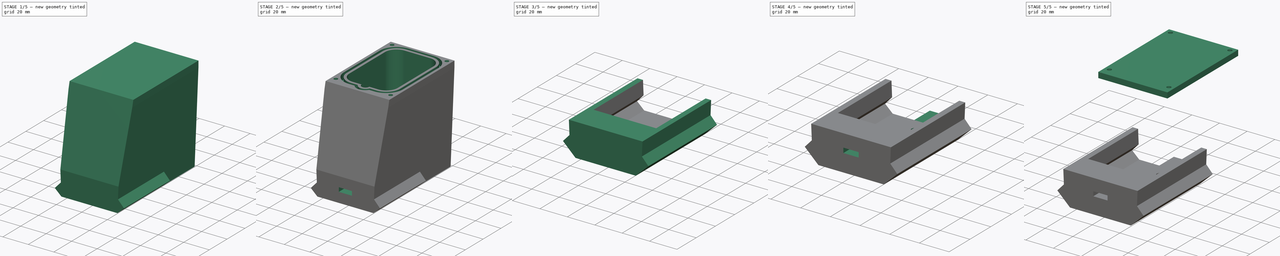
[diagram: build sequence overview — one tinted view per stage of 5, left to right]
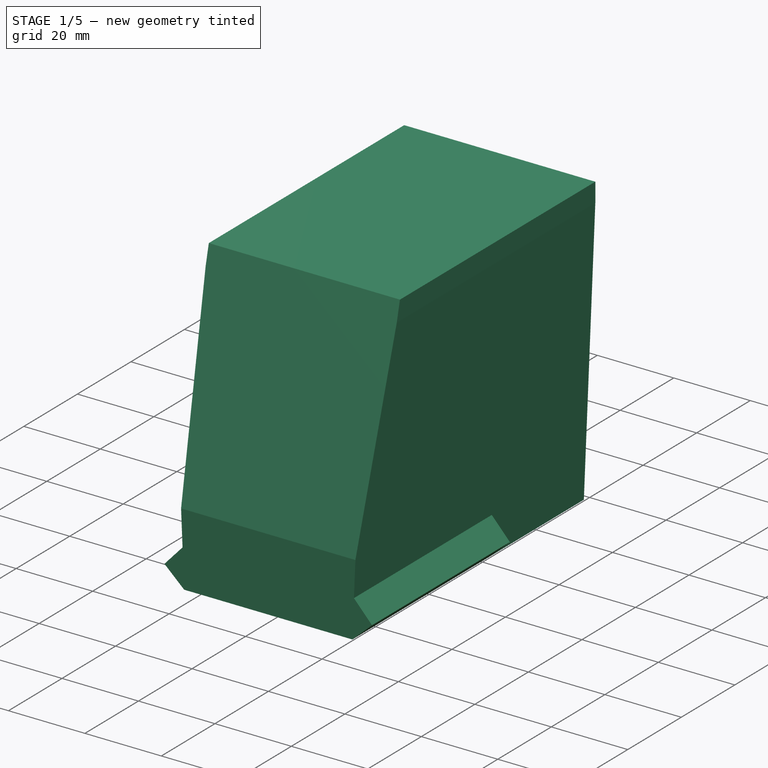
[diagram: stage 1 of 5 — iso view after this stage's code; geometry added in this stage tinted green]
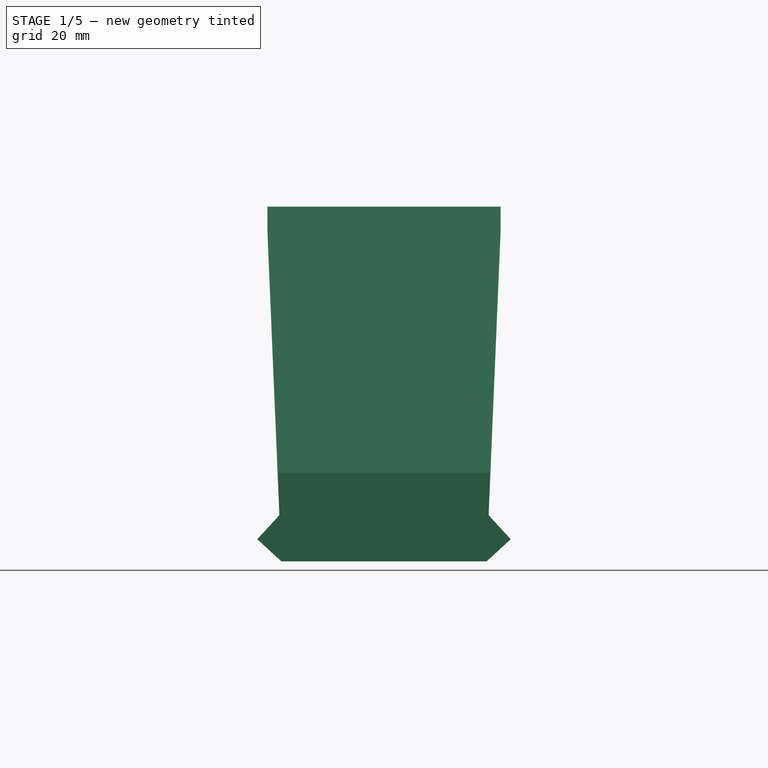
[diagram: stage 1 of 5 — front view after this stage's code; geometry added in this stage tinted green]
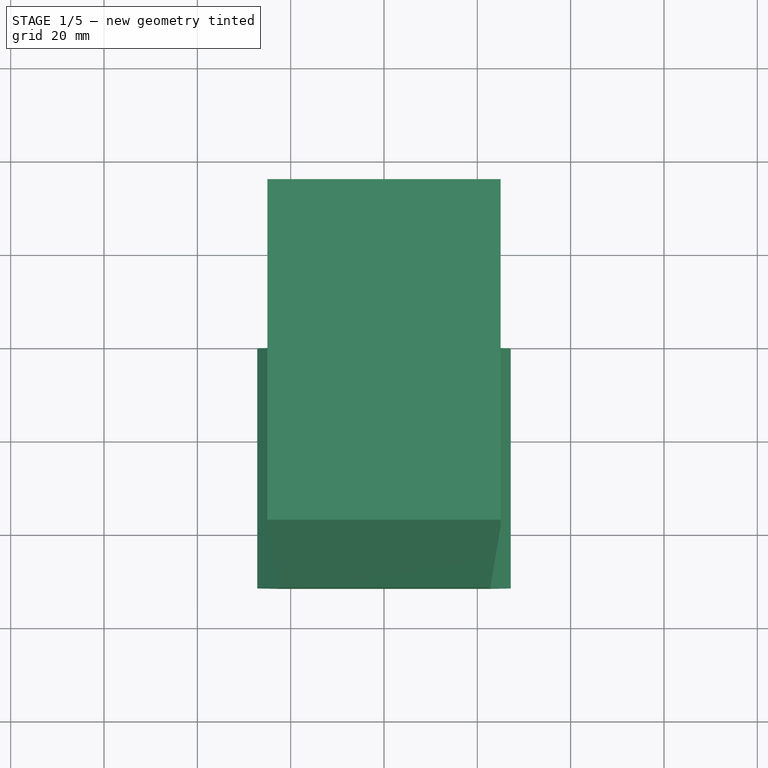
[diagram: stage 1 of 5 — top view after this stage's code; geometry added in this stage tinted green]
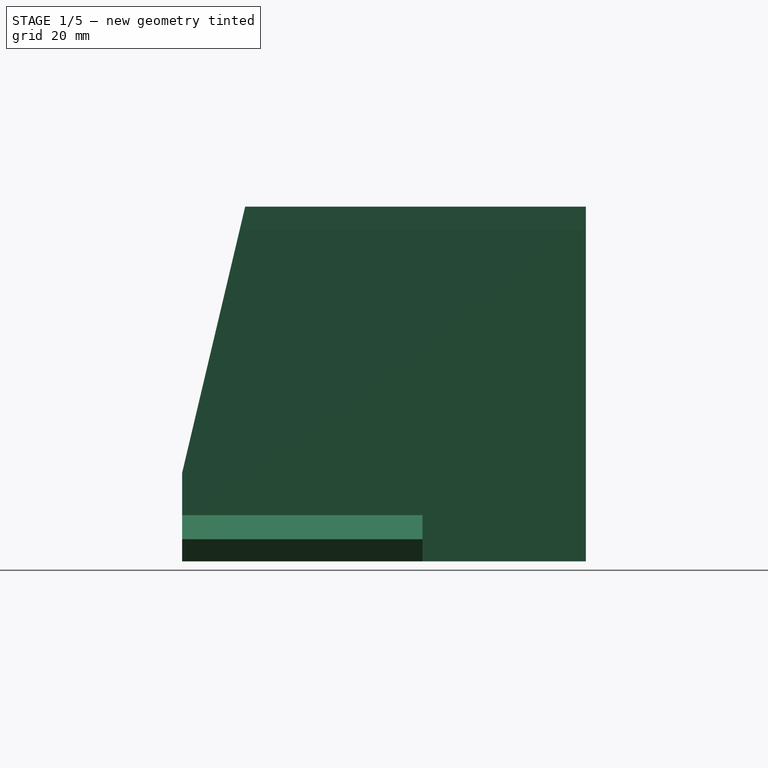
[diagram: stage 1 of 5 — right view after this stage's code; geometry added in this stage tinted green]
FCSTD DOCUMENT  (FreeCAD 1.0RUnknown)
Label: bike_battery_pack
License: Creative Commons Attribution-NonCommercial 4.0
LicenseURL: https://creativecommons.org/licenses/by-nc/4.0/
objects: Sketcher::SketchObject×15, PartDesign::Pocket×10, PartDesign::SubShapeBinder×6, PartDesign::Pad×5, PartDesign::Body×3, PartDesign::SubtractivePipe×1, App::VarSet×1, PartDesign::AdditivePipe×1
note: 90 computed .brp shape members not serialized (recipe doc carries the construction recipe); baked Part::Feature solids carry a one-line shape summary decoded from their .brp

FEATURE [Sketcher::SketchObject] Sketch
  ArcFitTolerance = 1e-06
  AttachmentSupport = -> [XZ_Plane]
  FullyConstrained = true
  MakeInternals = false
  MapMode = 5
  Placement = pos=(0,0,0) rot=(1,0,0;1.5708rad)
  expr: Constraints[12] = VarSet.cells_x * VarSet.cell_d + VarSet.tol + 2 * (VarSet.thk + VarSet.groove_thk)
  expr: Constraints[13] = VarSet.cell_h + VarSet.thk + VarSet.tol
  expr: Constraints[14] = VarSet.cells_x * VarSet.cell_d + 2 * VarSet.thk
  sketch-geometry (6):
    g0: LineSegment StartX=-25 StartY=0 StartZ=0 EndX=-25 EndY=5 EndZ=0
    g1: LineSegment StartX=-25 StartY=5 StartZ=0 EndX=25 EndY=5 EndZ=0
    g2: LineSegment StartX=25 StartY=5 StartZ=0 EndX=25 EndY=0 EndZ=0
    g3: LineSegment StartX=25 StartY=0 StartZ=0 EndX=22 EndY=-71 EndZ=0
    g4: LineSegment StartX=22 StartY=-71 StartZ=0 EndX=-22 EndY=-71 EndZ=0
    g5: LineSegment StartX=-22 StartY=-71 StartZ=0 EndX=-25 EndY=0 EndZ=0
  constraints (16):
    c: PointOnObject(g0,g-1)
    c: Vertical(g0)
    c: Coincident(g0,g1)
    c: Horizontal(g1)
    c: Coincident(g1,g2)
    c: Vertical(g2)
    c: Coincident(g2,g3)
    c: Coincident(g3,g4)
    c: Coincident(g4,g5)
    c: Coincident(g5,g0)
    c: Symmetric(g0,g2,g-2)
    c: DistanceY(g2,g2) = 5  'hh'
    c: DistanceX(g1,g1) = 50
    c: DistanceY(g3,g3) = 71
    c: DistanceX(g4,g4) = 44
    c: Symmetric(g4,g3,g-2)
FEATURE [PartDesign::Pad] Pad
  Direction = (0,-1,2e-16)
  Length = 51.5
  Length2 = 35
  Placement = pos=(0,0,0) rot=(1,0,0;1.5708rad)
  Profile = -> Sketch
  ReferenceAxis = -> Sketch [N_Axis]
  Refine = true
  Suppressed = false
  Type = 4
  expr: Length = VarSet.cells_y * VarSet.cell_d / 2 + VarSet.plug_length + VarSet.tol + VarSet.thk + VarSet.groove_thk + VarSet.cable_groove
  expr: Length2 = VarSet.cells_y * VarSet.cell_d / 2 + VarSet.tol + VarSet.thk + VarSet.groove_thk
FEATURE [Sketcher::SketchObject] Sketch001
  ArcFitTolerance = 1e-06
  AttachmentSupport = -> [XZ_Plane]
  ExternalGeometry = -> [Sketch]
  FullyConstrained = true
  MakeInternals = false
  MapMode = 5
  Placement = pos=(0,0,0) rot=(1,0,0;1.5708rad)
  expr: Constraints[14] = VarSet.tab_length
  sketch-geometry (6):
    g0: LineSegment StartX=22 StartY=-71 StartZ=0 EndX=27.1543 EndY=-66.2636 EndZ=0
    g1: LineSegment StartX=27.1543 StartY=-66.2636 StartZ=0 EndX=22.4179 EndY=-61.1093 EndZ=0
    g2: LineSegment StartX=22.4179 StartY=-61.1093 StartZ=0 EndX=22 EndY=-71 EndZ=0
    g3: LineSegment StartX=-22 StartY=-71 StartZ=0 EndX=-27.1543 EndY=-66.2636 EndZ=0
    g4: LineSegment StartX=-27.1543 StartY=-66.2636 StartZ=0 EndX=-22.4179 EndY=-61.1093 EndZ=0
    g5: LineSegment StartX=-22.4179 StartY=-61.1093 StartZ=0 EndX=-22 EndY=-71 EndZ=0
  constraints (16):
    c: Coincident(g-3,g0)
    c: Coincident(g0,g1)
    c: PointOnObject(g1,g-3)
    c: Coincident(g1,g2)
    c: Coincident(g2,g0)
    c: Coincident(g-4,g3)
    c: Coincident(g3,g4)
    c: PointOnObject(g4,g-4)
    c: Coincident(g4,g5)
    c: Coincident(g5,g3)
    c: Equal(g3,g0)
    c: Equal(g1,g0)
    c: Equal(g4,g3)
    c: Equal(g5,g2)
    c: Distance(g1,g1) = 7
    c: Perpendicular(g0,g1)
FEATURE [PartDesign::Pad] Pad001
  BaseFeature = -> Pad
  Direction = (0,-1,2e-16)
  Length = 17
  Length2 = 10
  Placement = pos=(0,0,0) rot=(1,0,0;1.5708rad)
  Profile = -> Sketch001
  ReferenceAxis = -> Sketch001 [N_Axis]
  Refine = true
  Suppressed = false
  Type = 1
FEATURE [Sketcher::SketchObject] Sketch002
  ArcFitTolerance = 1e-06
  AttachmentSupport = -> [YZ_Plane]
  ExternalGeometry = -> [Sketch]
  FullyConstrained = true
  MakeInternals = false
  MapMode = 5
  Placement = pos=(0,0,0) rot=(0.57735,0.57735,0.57735;2.0944rad)
  expr: Constraints[6] = Pad.Length
  expr: Constraints[7] = VarSet.plug_length
  expr: Constraints[8] = VarSet.base_height
  sketch-geometry (3):
    g0: LineSegment StartX=-38 StartY=5 StartZ=0 EndX=-51.5 EndY=5 EndZ=0
    g1: LineSegment StartX=-51.5 StartY=5 StartZ=0 EndX=-51.5 EndY=-52 EndZ=0
    g2: LineSegment StartX=-51.5 StartY=-52 StartZ=0 EndX=-38 EndY=5 EndZ=0
  constraints (9):
    c: Horizontal(g0)
    c: Coincident(g0,g1)
    c: Vertical(g1)
    c: Coincident(g1,g2)
    c: Coincident(g2,g0)
    c: Horizontal(g0,g-4)
    c: DistanceX(g0,g-1) = 51.5
    c: DistanceX(g0,g0) = 13.5
    c: DistanceY(g-3,g1) = 19
FEATURE [PartDesign::Pocket] Pocket
  BaseFeature = -> Pad001
  Direction = (-1,0,0)
  Length = 5
  Length2 = 5
  Midplane = true
  Placement = pos=(0,0,0) rot=(1,0,0;1.5708rad)
  Profile = -> Sketch002
  ReferenceAxis = -> Sketch002 [N_Axis]
  Refine = true
  Suppressed = false
  Type = 1
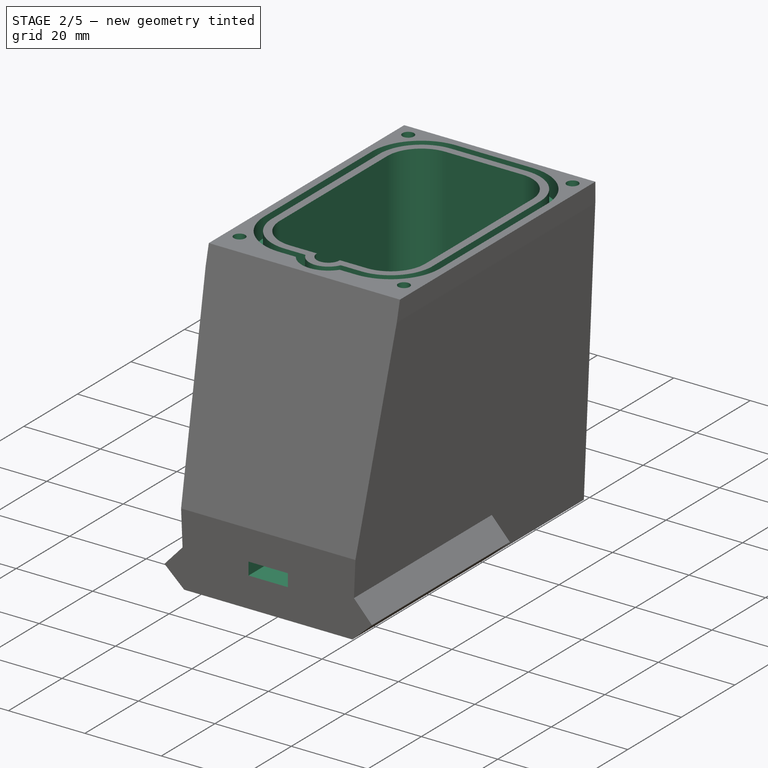
[diagram: stage 2 of 5 — iso view after this stage's code; geometry added in this stage tinted green]
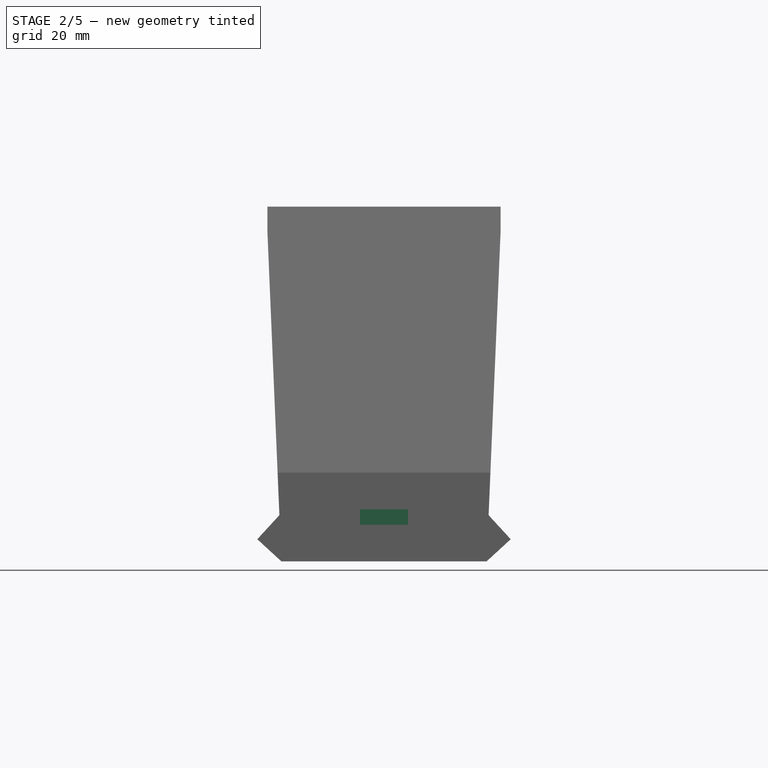
[diagram: stage 2 of 5 — front view after this stage's code; geometry added in this stage tinted green]
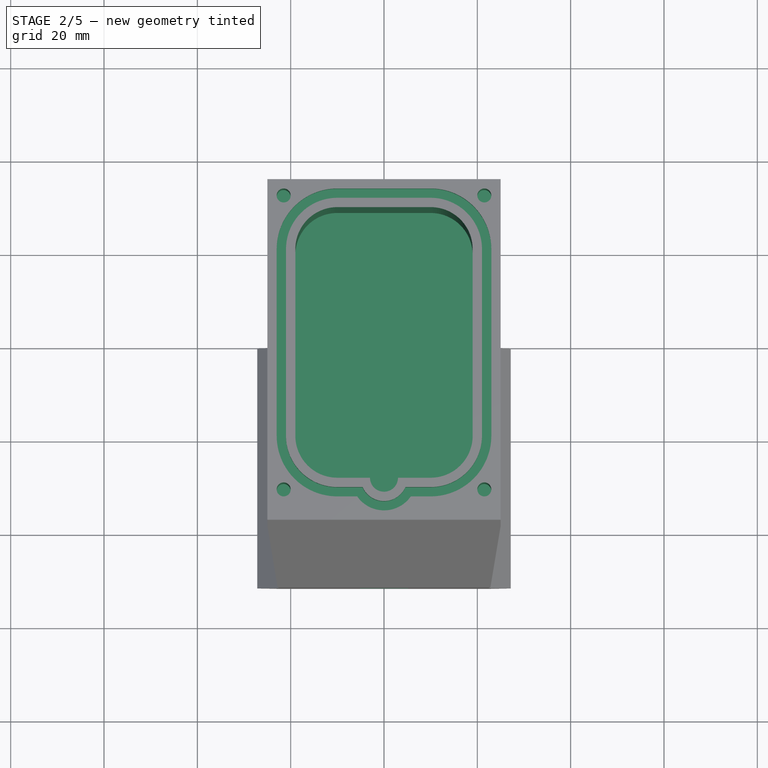
[diagram: stage 2 of 5 — top view after this stage's code; geometry added in this stage tinted green]
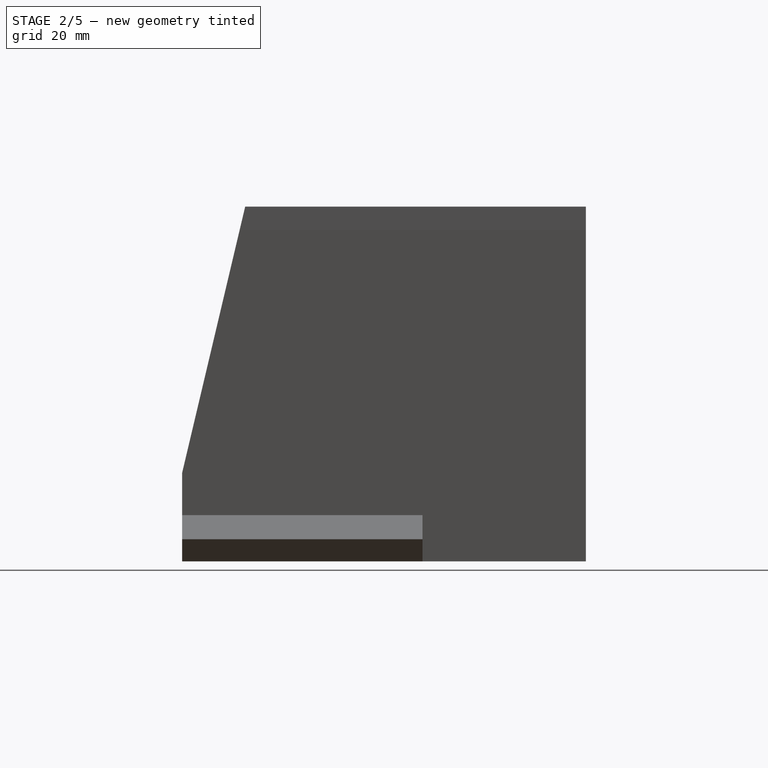
[diagram: stage 2 of 5 — right view after this stage's code; geometry added in this stage tinted green]
FEATURE [Sketcher::SketchObject] Sketch003
  ArcFitTolerance = 1e-06
  AttachmentSupport = -> [XY_Plane]
  FullyConstrained = false
  MakeInternals = false
  MapMode = 5
  expr: Constraints[11] = VarSet.cells_x * VarSet.cell_d + VarSet.tol + VarSet.cable_groove * 0
  expr: Constraints[12] = VarSet.cells_y * VarSet.cell_d + VarSet.tol * 2
  expr: Constraints[13] = VarSet.cell_d / 2
  expr: Constraints[22] = VarSet.cable_groove
  sketch-geometry (12):
    g0: LineSegment StartX=19 StartY=-20 StartZ=0 EndX=19 EndY=20 EndZ=0
    g1: LineSegment StartX=10 StartY=29 StartZ=0 EndX=-10 EndY=29 EndZ=0
    g2: LineSegment StartX=-19 StartY=20 StartZ=0 EndX=-19 EndY=-20 EndZ=0
    g3: ArcOfCircle CenterX=-10 CenterY=-20 CenterZ=0 NormalX=0 NormalY=0 NormalZ=1 AngleXU=0 Radius=9 StartAngle=3.14159 EndAngle=4.71239
    g4: ArcOfCircle CenterX=10 CenterY=-20 CenterZ=0 NormalX=0 NormalY=0 NormalZ=1 AngleXU=0 Radius=9 StartAngle=4.71239 EndAngle=6.28319
    g5: ArcOfCircle CenterX=10 CenterY=20 CenterZ=0 NormalX=0 NormalY=0 NormalZ=1 AngleXU=0 Radius=9 StartAngle=0 EndAngle=1.5708
    g6: ArcOfCircle CenterX=-10 CenterY=20 CenterZ=0 NormalX=0 NormalY=0 NormalZ=1 AngleXU=0 Radius=9 StartAngle=1.5708 EndAngle=3.14159
    g7: GeomPoint [constr] X=19 Y=29 Z=0
    g8: GeomPoint [constr] X=0 Y=0 Z=0
    g9: LineSegment StartX=-10 StartY=-29 StartZ=0 EndX=-3 EndY=-29 EndZ=0
    g10: LineSegment StartX=10 StartY=-29 StartZ=0 EndX=3 EndY=-29 EndZ=0
    g11: ArcOfCircle CenterX=0 CenterY=-29 CenterZ=0 NormalX=0 NormalY=0 NormalZ=1 AngleXU=0 Radius=3 StartAngle=3.14159 EndAngle=6.28319
  constraints (27):
    c: Tangent(g0,g4) = -1.5708
    c: Tangent(g0,g5) = -1.5708
    c: Tangent(g1,g5) = -1.5708
    c: Tangent(g1,g6) = -1.5708
    c: Tangent(g2,g6) = -1.5708
    c: Tangent(g2,g3) = -1.5708
    c: Horizontal(g1)
    c: Vertical(g0)
    c: Equal(g3,g4)
    c: PointOnObject(g7,g0)
    c: PointOnObject(g7,g1)
    c: Distance(g0,g2) = 38
    c: Distance(g3,g1) = 58
    c: Radius(g4) = 9
    c: Symmetric(g2,g0,g-2)
    c: Vertical(g1,g3)
    c: Symmetric(g3,g4,g-2)
    c: Tangent(g3,g9) = -1.5708
    c: Tangent(g4,g10) = 1.5708
    c: PointOnObject(g11,g-2)
    c: Coincident(g11,g9)
    c: Coincident(g11,g10)
    c: Radius(g11) = 3
    c: Horizontal(g11,g3)
    c: Distance(g6,g-2) = 10
    c: Horizontal(g9)
    c: Symmetric(g2,g2,g-1)
FEATURE [PartDesign::Pocket] Pocket001
  BaseFeature = -> Pocket
  Direction = (0,0,-1)
  Length = 67
  Length2 = 5
  Placement = pos=(0,0,0) rot=(1,0,0;1.5708rad)
  Profile = -> Sketch003
  ReferenceAxis = -> Sketch003 [N_Axis]
  Refine = true
  Suppressed = false
  Type = 4
  expr: Length = VarSet.cell_h + VarSet.tol
  expr: Length2 = Sketch.Constraints.hh
FEATURE [Sketcher::SketchObject] Sketch004
  ArcFitTolerance = 1e-06
  AttachmentSupport = -> [Sketch003]
  ExternalGeometry = -> [Sketch]
  FullyConstrained = true
  MakeInternals = false
  MapMode = 45
  Placement = pos=(-19,-9e-16,0) rot=(0,0.707107,0.707107;3.14159rad)
  expr: Constraints[10] = VarSet.groove_thk
  expr: Constraints[11] = VarSet.thk / 2
  sketch-geometry (4):
    g0: LineSegment StartX=4 StartY=0 StartZ=0 EndX=4 EndY=5 EndZ=0
    g1: LineSegment StartX=4 StartY=5 StartZ=0 EndX=2 EndY=5 EndZ=0
    g2: LineSegment StartX=2 StartY=5 StartZ=0 EndX=2 EndY=0 EndZ=0
    g3: LineSegment StartX=2 StartY=0 StartZ=0 EndX=4 EndY=0 EndZ=0
  constraints (12):
    c: Coincident(g0,g1)
    c: Coincident(g1,g2)
    c: Coincident(g2,g3)
    c: Coincident(g3,g0)
    c: Vertical(g0)
    c: Vertical(g2)
    c: Horizontal(g1)
    c: Horizontal(g3)
    c: PointOnObject(g0,g-1)
    c: PointOnObject(g0,g-3)
    c: DistanceX(g3,g3) = 2
    c: Distance(g1,g-2) = 2
FEATURE [PartDesign::SubtractivePipe] SubtractivePipe
  AuxilleryCurvelinear = true
  AuxillerySpineTangent = false
  BaseFeature = -> Pocket001
  Binormal = (0,0,0)
  Mode = 0
  Placement = pos=(0,0,0) rot=(1,0,0;1.5708rad)
  Profile = -> Sketch004
  Refine = true
  Spine = -> Sketch003
  SpineTangent = false
  Suppressed = false
  Transformation = 0
  Transition = 2
FEATURE [App::VarSet] VarSet
  base_height = 19
  cable_groove = 3
  cell_d = 18
  cell_h = 65
  cells_x = 2
  cells_y = 3
  groove_thk = 2
  hole_dia = 3
  plug_body_length = 10.4
  plug_height = 12.3
  plug_length = 13.5
  plug_radius = 1
  plug_slanted_length = 1.5
  plug_width = 5.3
  tab_length = 7
  thk = 4
  tol = 2
  expr: plug_body_length = (12.4 - 3 + 1) * 1 mm
FEATURE [Sketcher::SketchObject] Sketch005
  ArcFitTolerance = 1e-06
  AttachmentSupport = -> [XY_Plane]
  ExternalGeometry = -> [SubtractivePipe]
  FullyConstrained = true
  MakeInternals = false
  MapMode = 5
  expr: Constraints[3] = VarSet.hole_dia
  expr: Constraints[7] = 2 mm + VarSet.hole_dia / 2
  expr: Constraints[8] = 2 mm + VarSet.hole_dia / 2
  sketch-geometry (4):
    g0: Circle CenterX=-21.5 CenterY=31.5 CenterZ=0 NormalX=0 NormalY=0 NormalZ=1 AngleXU=0 Radius=1.5
    g1: Circle CenterX=21.5 CenterY=31.5 CenterZ=0 NormalX=0 NormalY=0 NormalZ=1 AngleXU=0 Radius=1.5
    g2: Circle CenterX=21.5 CenterY=-31.5 CenterZ=0 NormalX=0 NormalY=0 NormalZ=1 AngleXU=0 Radius=1.5
    g3: Circle CenterX=-21.5 CenterY=-31.5 CenterZ=0 NormalX=0 NormalY=0 NormalZ=1 AngleXU=0 Radius=1.5
  constraints (9):
    c: Equal(g0,g1)
    c: Equal(g1,g2)
    c: Equal(g2,g3)
    c: Diameter(g0) = 3
    c: Symmetric(g0,g1,g-2)
    c: Symmetric(g0,g3,g-1)
    c: Symmetric(g2,g3,g-2)
    c: Distance(g0,g-4) = 3.5
    c: Distance(g0,g-3) = 3.5
FEATURE [PartDesign::Pocket] Pocket002
  BaseFeature = -> SubtractivePipe
  Direction = (0,0,-1)
  Length = 5
  Length2 = 15
  Placement = pos=(0,0,0) rot=(1,0,0;1.5708rad)
  Profile = -> Sketch005
  ReferenceAxis = -> Sketch005 [N_Axis]
  Refine = true
  Reversed = true
  Suppressed = false
  Type = 4
FEATURE [Sketcher::SketchObject] Sketch006
  ArcFitTolerance = 1e-06
  AttachmentSupport = -> [XZ_Plane]
  ExternalGeometry = -> [Sketch]
  FullyConstrained = true
  MakeInternals = false
  MapMode = 5
  Placement = pos=(0,0,0) rot=(1,0,0;1.5708rad)
  expr: Constraints[11] = VarSet.base_height / 2
  expr: Constraints[7] = VarSet.plug_width - 2 mm
  expr: Constraints[8] = VarSet.plug_height - 2 mm
  sketch-geometry (5):
    g0: LineSegment StartX=-5.15 StartY=-59.85 StartZ=0 EndX=-5.15 EndY=-63.15 EndZ=0
    g1: LineSegment StartX=-5.15 StartY=-63.15 StartZ=0 EndX=5.15 EndY=-63.15 EndZ=0
    g2: LineSegment StartX=5.15 StartY=-63.15 StartZ=0 EndX=5.15 EndY=-59.85 EndZ=0
    g3: LineSegment StartX=5.15 StartY=-59.85 StartZ=0 EndX=-5.15 EndY=-59.85 EndZ=0
    g4: GeomPoint X=-5.15 Y=-61.5 Z=0
  constraints (12):
    c: Coincident(g0,g1)
    c: Coincident(g1,g2)
    c: Coincident(g2,g3)
    c: Coincident(g3,g0)
    c: Vertical(g0)
    c: Vertical(g2)
    c: Horizontal(g1)
    c: Distance(g0,g0) = 3.3
    c: Distance(g1,g1) = 10.3
    c: Symmetric(g0,g2,g-2)
    c: Symmetric(g0,g0,g4)
    c: Distance(g4,g-3) = 9.5
FEATURE [PartDesign::Pocket] Pocket003
  BaseFeature = -> Pocket002
  Direction = (0,1,-2e-16)
  Length = 5
  Length2 = 5
  Placement = pos=(0,0,0) rot=(1,0,0;1.5708rad)
  Profile = -> Sketch006
  ReferenceAxis = -> Sketch006 [N_Axis]
  Refine = true
  Reversed = true
  Suppressed = false
  Type = 1
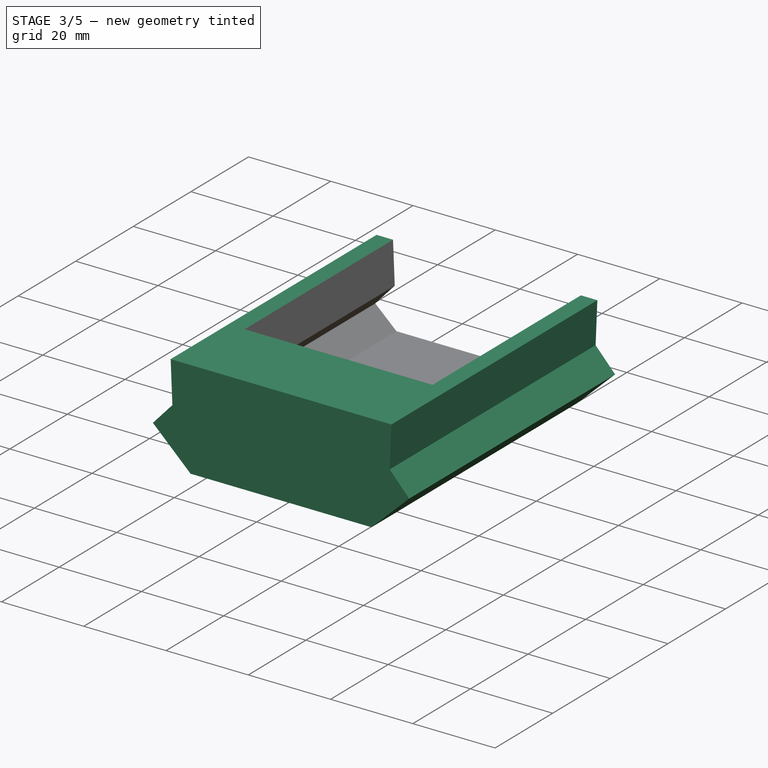
[diagram: stage 3 of 5 — iso view after this stage's code; geometry added in this stage tinted green]
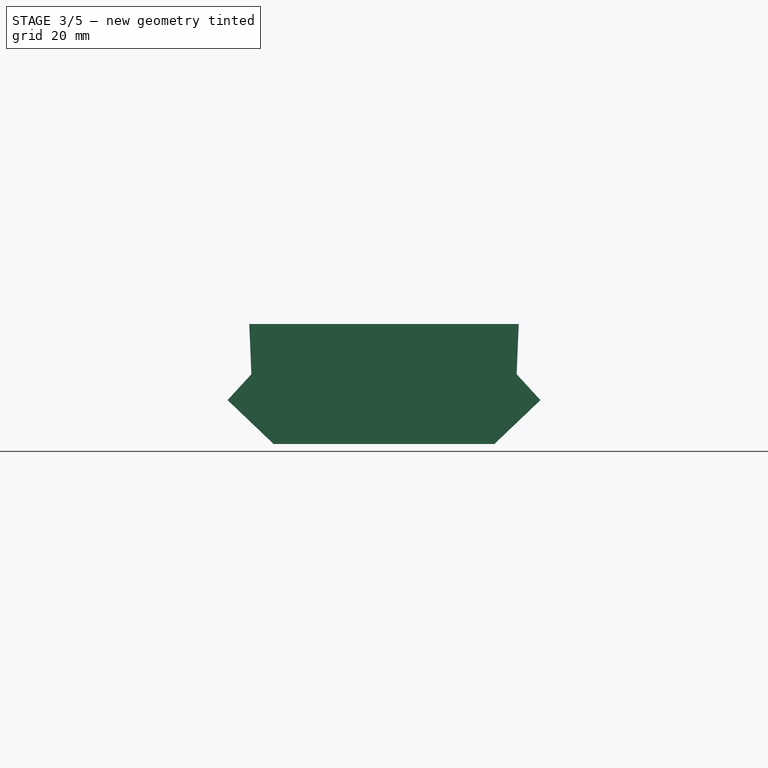
[diagram: stage 3 of 5 — front view after this stage's code; geometry added in this stage tinted green]
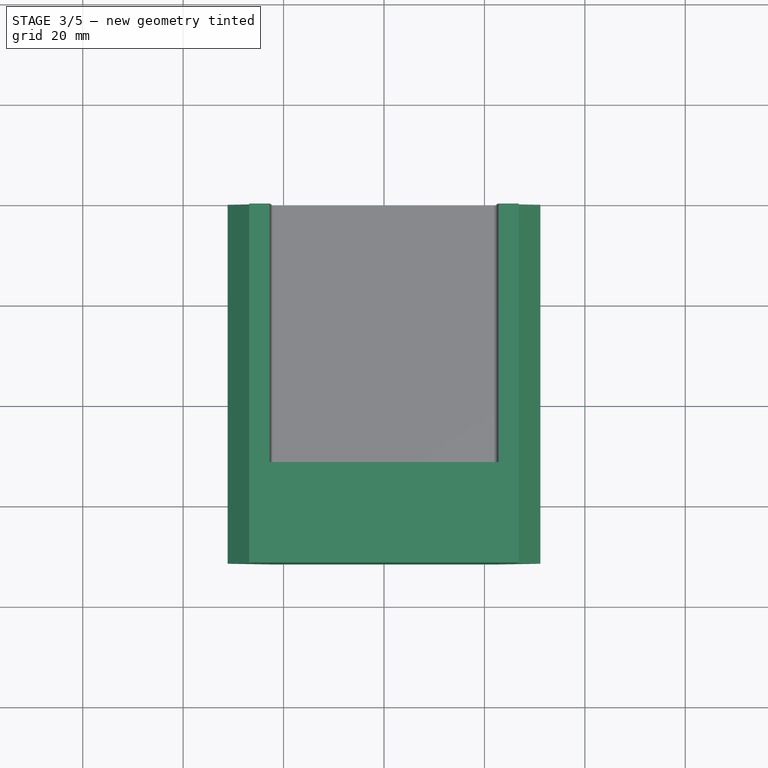
[diagram: stage 3 of 5 — top view after this stage's code; geometry added in this stage tinted green]
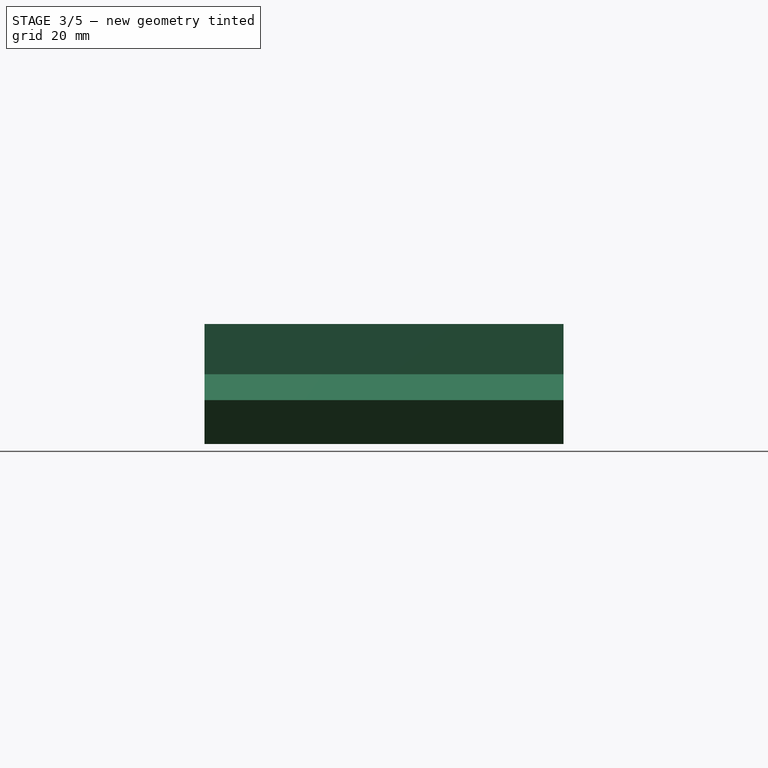
[diagram: stage 3 of 5 — right view after this stage's code; geometry added in this stage tinted green]
FEATURE [Sketcher::SketchObject] Sketch007
  ArcFitTolerance = 1e-06
  AttachmentSupport = -> [Pocket003]
  ExternalGeometry = -> [Sketch]
  FullyConstrained = true
  MakeInternals = false
  MapMode = 5
  Placement = pos=(0,-51.5,2.01e-14) rot=(1,0,0;1.5708rad)
  expr: Constraints[10] = VarSet.plug_height
  expr: Constraints[11] = VarSet.plug_height / 2
  expr: Constraints[17] = 90 + 45
  expr: Constraints[20] = VarSet.plug_slanted_length
  expr: Constraints[5] = VarSet.plug_width
  expr: Constraints[7] = VarSet.base_height / 2
  sketch-geometry (7):
    g0: LineSegment StartX=-6.15 StartY=-58.85 StartZ=0 EndX=-6.15 EndY=-64.15 EndZ=0
    g1: LineSegment StartX=-6.15 StartY=-64.15 StartZ=0 EndX=4.65 EndY=-64.15 EndZ=0
    g2: LineSegment StartX=6.15 StartY=-62.65 StartZ=0 EndX=6.15 EndY=-60.35 EndZ=0
    g3: LineSegment StartX=4.65 StartY=-58.85 StartZ=0 EndX=-6.15 EndY=-58.85 EndZ=0
    g4: GeomPoint X=-6.15 Y=-61.5 Z=0
    g5: LineSegment StartX=4.65 StartY=-58.85 StartZ=0 EndX=6.15 EndY=-60.35 EndZ=0
    g6: LineSegment StartX=6.15 StartY=-62.65 StartZ=0 EndX=4.65 EndY=-64.15 EndZ=0
  constraints (22):
    c: Coincident(g0,g1)
    c: Coincident(g3,g0)
    c: Vertical(g0)
    c: Vertical(g2)
    c: Horizontal(g1)
    c: DistanceY(g0,g0) = 5.3
    c: Symmetric(g0,g0,g4)
    c: Distance(g4,g-3) = 9.5
    c: Horizontal(g3)
    c: Vertical(g3,g1)
    c: DistanceX(g0,g2) = 12.3
    c: Distance(g0,g-2) = 6.15
    c: Coincident(g5,g3)
    c: Coincident(g5,g2)
    c: Coincident(g6,g2)
    c: Coincident(g6,g1)
    c: Equal(g5,g6)
    c: Angle(g3,g5) = 2.35619
    c: DistanceX(g1,g1) = 10.8
    c: Distance(g2,g2) = 2.3
    c: DistanceY(g2,g3) = 1.5
    c: Distance(g5,g5) = 2.12132
FEATURE [PartDesign::Pocket] Pocket004
  BaseFeature = -> Pocket003
  Direction = (0,1,-2e-16)
  Length = 10.4
  Length2 = 5
  Placement = pos=(0,0,0) rot=(1,0,0;1.5708rad)
  Profile = -> Sketch007
  ReferenceAxis = -> Sketch007 [N_Axis]
  Refine = true
  Suppressed = false
  Type = 0
  expr: Length = VarSet.plug_body_length
FEATURE [PartDesign::Body] Body001  label="lid"
  AllowCompound = false
  Group = -> [Binder,Sketch008,Pad002,Sketch009,Pocket005,Binder002,Binder003,Sketch010,AdditivePipe]
  Origin = -> Origin001
  Placement = pos=(0,1e-15,22) rot=(1,0,0;3.14159rad)
  Tip = -> AdditivePipe
FEATURE [PartDesign::SubShapeBinder] Binder004
  BindCopyOnChange = 0
  BindMode = 0
  ClaimChildren = false
  Context = -> Body002 [Binder004.]
  Fuse = false
  MakeFace = true
  OffsetFill = false
  OffsetIntersection = false
  OffsetJoinType = 0
  OffsetOpenResult = false
  PartialLoad = false
  Refine = true
  Relative = true
  Support = -> [Body[Pad001.]]
  _Version = 2
FEATURE [Sketcher::SketchObject] Sketch011
  ArcFitTolerance = 1e-06
  AttachmentSupport = -> [XZ_Plane002]
  ExternalGeometry = -> [Binder004]
  FullyConstrained = true
  MakeInternals = false
  MapMode = 5
  Placement = pos=(0,0,0) rot=(1,0,0;1.5708rad)
  expr: Constraints[12] = VarSet.thk
  expr: Constraints[13] = VarSet.thk
  expr: Constraints[16] = VarSet.thk
  sketch-geometry (8):
    g0: LineSegment StartX=-22 StartY=-75 StartZ=0 EndX=-31.1543 EndY=-66.2636 EndZ=0
    g1: LineSegment StartX=-31.1543 StartY=-66.2636 StartZ=0 EndX=-26.4179 EndY=-61.1093 EndZ=0
    g2: LineSegment StartX=-26.4179 StartY=-61.1093 StartZ=0 EndX=-26.8401 EndY=-51.1182 EndZ=0
    g3: LineSegment StartX=-26.8401 StartY=-51.1182 StartZ=0 EndX=26.8401 EndY=-51.1182 EndZ=0
    g4: LineSegment StartX=26.8401 StartY=-51.1182 StartZ=0 EndX=26.4179 EndY=-61.1093 EndZ=0
    g5: LineSegment StartX=26.4179 StartY=-61.1093 StartZ=0 EndX=31.1543 EndY=-66.2636 EndZ=0
    g6: LineSegment StartX=31.1543 StartY=-66.2636 StartZ=0 EndX=22 EndY=-75 EndZ=0
    g7: LineSegment StartX=22 StartY=-75 StartZ=0 EndX=-22 EndY=-75 EndZ=0
  constraints (20):
    c: Coincident(g0,g1)
    c: Coincident(g1,g2)
    c: Coincident(g2,g3)
    c: Coincident(g3,g4)
    c: Coincident(g4,g5)
    c: Coincident(g5,g6)
    c: Coincident(g6,g7)
    c: Coincident(g7,g0)
    c: Vertical(g-5,g0)
    c: Symmetric(g0,g6,g-2)
    c: Horizontal(g0,g-4)
    c: Symmetric(g0,g5,g-2)
    c: Distance(g0,g-4) = 4
    c: DistanceX(g1,g-8) = 4
    c: Horizontal(g1,g-8)
    c: Symmetric(g1,g4,g-2)
    c: Distance(g0,g-5) = 4
    c: Parallel(g-8,g2)
    c: Symmetric(g2,g3,g-2)
    c: Distance(g1,g2) = 10
FEATURE [PartDesign::Pad] Pad003
  Direction = (0,-1,2e-16)
  Length = 71.5
  Length2 = 10
  Placement = pos=(0,0,0) rot=(1,0,0;1.5708rad)
  Profile = -> Sketch011
  ReferenceAxis = -> Sketch011 [N_Axis]
  Refine = true
  Suppressed = false
  Type = 0
  expr: Length = Pad.Length + 20 mm
FEATURE [Sketcher::SketchObject] Sketch012
  ArcFitTolerance = 1e-06
  AttachmentSupport = -> [XZ_Plane002]
  ExternalGeometry = -> [Binder004]
  FullyConstrained = true
  MakeInternals = false
  MapMode = 5
  Placement = pos=(0,0,0) rot=(1,0,0;1.5708rad)
  sketch-geometry (8):
    g0: LineSegment StartX=22 StartY=-71 StartZ=0 EndX=-22 EndY=-71 EndZ=0
    g1: LineSegment StartX=-22 StartY=-71 StartZ=0 EndX=-27.1543 EndY=-66.2636 EndZ=0
    g2: LineSegment StartX=-27.1543 StartY=-66.2636 StartZ=0 EndX=-22.4179 EndY=-61.1093 EndZ=0
    g3: LineSegment StartX=-22.4179 StartY=-61.1093 StartZ=0 EndX=-23.263 EndY=-41.1093 EndZ=0
    g4: LineSegment StartX=-23.263 StartY=-41.1093 StartZ=0 EndX=23.263 EndY=-41.1093 EndZ=0
    g5: LineSegment StartX=23.263 StartY=-41.1093 StartZ=0 EndX=22.4179 EndY=-61.1093 EndZ=0
    g6: LineSegment StartX=22.4179 StartY=-61.1093 StartZ=0 EndX=27.1543 EndY=-66.2636 EndZ=0
    g7: LineSegment StartX=27.1543 StartY=-66.2636 StartZ=0 EndX=22 EndY=-71 EndZ=0
  constraints (18):
    c: Coincident(g-8,g0)
    c: Coincident(g0,g-9)
    c: Coincident(g0,g1)
    c: Coincident(g1,g-9)
    c: Coincident(g1,g2)
    c: Coincident(g2,g3)
    c: PointOnObject(g3,g-4)
    c: Coincident(g3,g4)
    c: PointOnObject(g4,g-5)
    c: Horizontal(g4)
    c: Coincident(g4,g5)
    c: Coincident(g5,g-6)
    c: Coincident(g5,g6)
    c: Coincident(g6,g-7)
    c: Coincident(g6,g7)
    c: Coincident(g7,g0)
    c: Coincident(g2,g-4)
    c: DistanceY(g5,g5) = 20
FEATURE [PartDesign::Pocket] Pocket006
  BaseFeature = -> Pad003
  Direction = (0,1,-2e-16)
  Length = 51.5
  Length2 = 5
  Placement = pos=(0,0,0) rot=(1,0,0;1.5708rad)
  Profile = -> Sketch012
  ReferenceAxis = -> Sketch012 [N_Axis]
  Refine = true
  Reversed = true
  Suppressed = false
  Type = 0
  expr: Length = Pad.Length
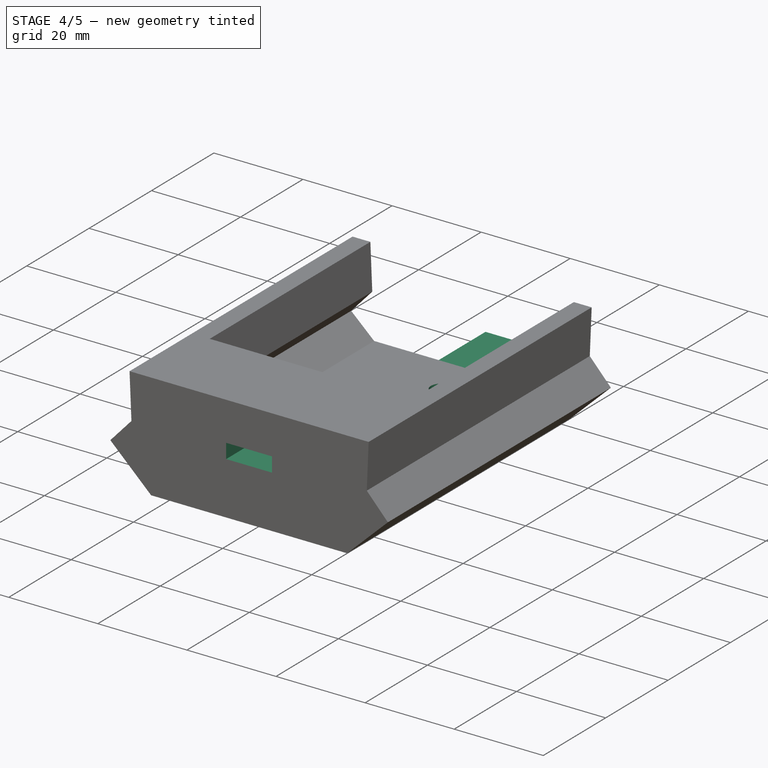
[diagram: stage 4 of 5 — iso view after this stage's code; geometry added in this stage tinted green]
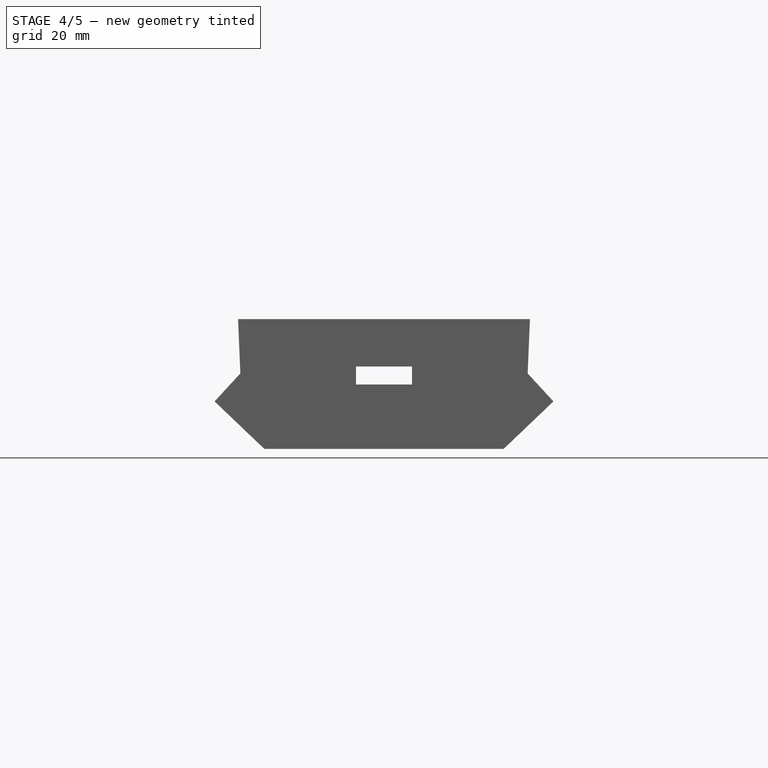
[diagram: stage 4 of 5 — front view after this stage's code; geometry added in this stage tinted green]
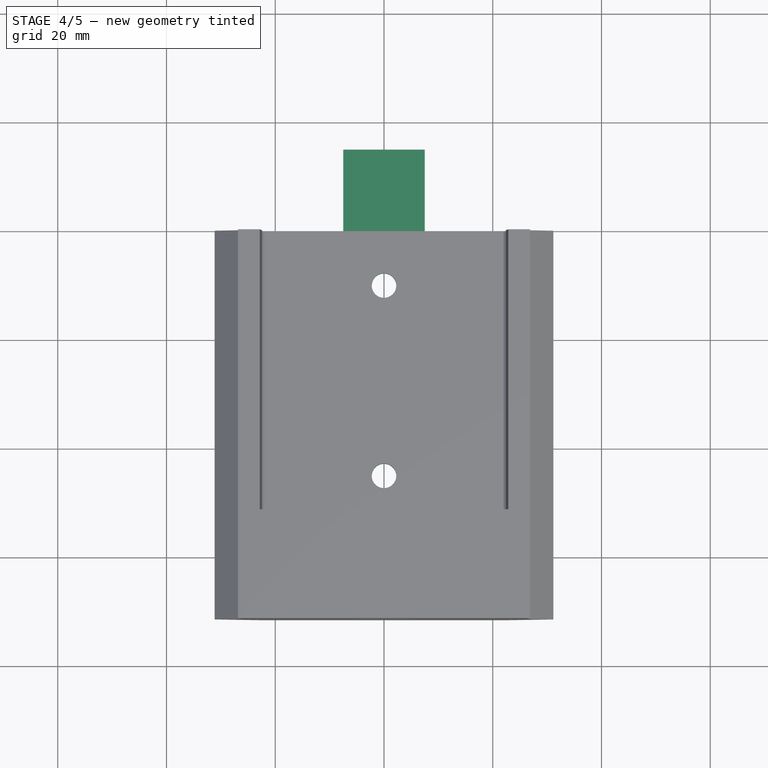
[diagram: stage 4 of 5 — top view after this stage's code; geometry added in this stage tinted green]
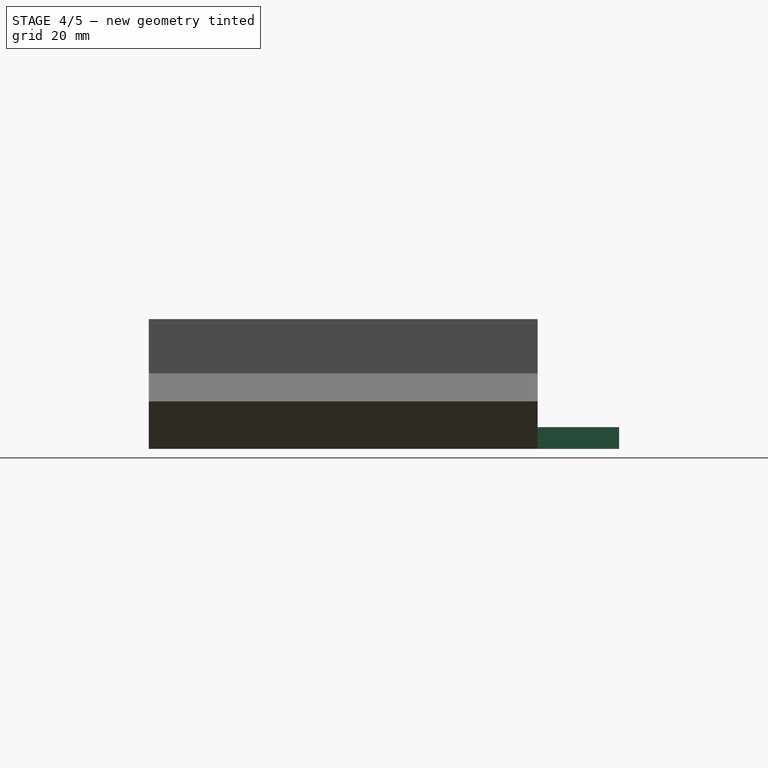
[diagram: stage 4 of 5 — right view after this stage's code; geometry added in this stage tinted green]
FEATURE [Sketcher::SketchObject] Sketch013
  ArcFitTolerance = 1e-06
  AttachmentSupport = -> [XY_Plane002]
  FullyConstrained = true
  MakeInternals = false
  MapMode = 5
  sketch-geometry (2):
    g0: Circle CenterX=0 CenterY=-10 CenterZ=0 NormalX=0 NormalY=0 NormalZ=1 AngleXU=0 Radius=2.25
    g1: Circle CenterX=0 CenterY=-45 CenterZ=0 NormalX=0 NormalY=0 NormalZ=1 AngleXU=0 Radius=2.25
  constraints (6):
    c: PointOnObject(g0,g-2)
    c: PointOnObject(g1,g-2)
    c: DistanceY(g1,g0) = 35
    c: Equal(g0,g1)
    c: Diameter(g0) = 4.5
    c: DistanceY(g0,g-1) = 10
FEATURE [PartDesign::Pocket] Pocket007
  BaseFeature = -> Pocket006
  Direction = (0,0,-1)
  Length = 5
  Length2 = 5
  Placement = pos=(0,0,0) rot=(1,0,0;1.5708rad)
  Profile = -> Sketch013
  ReferenceAxis = -> Sketch013 [N_Axis]
  Refine = true
  Suppressed = false
  Type = 1
FEATURE [PartDesign::SubShapeBinder] Binder005
  BindCopyOnChange = 0
  BindMode = 0
  ClaimChildren = false
  Context = -> Body002 [Binder005.]
  Fuse = false
  MakeFace = true
  OffsetFill = false
  OffsetIntersection = false
  OffsetJoinType = 0
  OffsetOpenResult = false
  PartialLoad = false
  Refine = true
  Relative = true
  Support = -> [Body[Sketch007.]]
  _Version = 2
FEATURE [PartDesign::Pocket] Pocket008
  BaseFeature = -> Pocket007
  Direction = (0,-1,3e-16)
  Length = 5
  Length2 = 5
  Placement = pos=(0,0,0) rot=(1,0,0;1.5708rad)
  Profile = -> Binder005
  Refine = true
  Suppressed = false
  Type = 0
FEATURE [PartDesign::SubShapeBinder] Binder006
  BindCopyOnChange = 0
  BindMode = 0
  ClaimChildren = false
  Context = -> Body002 [Binder006.]
  Fuse = false
  MakeFace = true
  OffsetFill = false
  OffsetIntersection = false
  OffsetJoinType = 0
  OffsetOpenResult = false
  PartialLoad = false
  Refine = true
  Relative = true
  Support = -> [Body[Sketch006.]]
  _Version = 2
FEATURE [PartDesign::Pocket] Pocket009
  BaseFeature = -> Pocket008
  Direction = (0,-1,0)
  Length = 5
  Length2 = 5
  Placement = pos=(0,0,0) rot=(1,0,0;1.5708rad)
  Profile = -> Binder006
  Refine = true
  Suppressed = false
  Type = 1
FEATURE [Sketcher::SketchObject] Sketch014
  ArcFitTolerance = 1e-06
  AttachmentSupport = -> [Pocket009]
  ExternalGeometry = -> [Pocket009]
  FullyConstrained = true
  MakeInternals = false
  MapMode = 5
  Placement = pos=(0,-1.39e-14,0) rot=(-1,0,0;1.5708rad)
  sketch-geometry (5):
    g0: LineSegment StartX=-7.5 StartY=75 StartZ=0 EndX=-7.5 EndY=71 EndZ=0
    g1: LineSegment StartX=-7.5 StartY=71 StartZ=0 EndX=7.5 EndY=71 EndZ=0
    g2: LineSegment StartX=7.5 StartY=71 StartZ=0 EndX=7.5 EndY=75 EndZ=0
    g3: LineSegment StartX=7.5 StartY=75 StartZ=0 EndX=-7.5 EndY=75 EndZ=0
    g4: GeomPoint [constr] X=4e-16 Y=73 Z=0
  constraints (13):
    c: Coincident(g0,g1)
    c: Coincident(g1,g2)
    c: Coincident(g2,g3)
    c: Coincident(g3,g0)
    c: Vertical(g0)
    c: Vertical(g2)
    c: Horizontal(g1)
    c: Horizontal(g3)
    c: Symmetric(g2,g0,g4)
    c: PointOnObject(g4,g-2)
    c: PointOnObject(g1,g-4)
    c: PointOnObject(g0,g-3)
    c: Distance(g0,g1) = 15
FEATURE [PartDesign::Pad] Pad004
  BaseFeature = -> Pocket009
  Direction = (0,1,2e-16)
  Length = 15
  Length2 = 10
  Placement = pos=(0,0,0) rot=(1,0,0;1.5708rad)
  Profile = -> Sketch014
  ReferenceAxis = -> Sketch014 [N_Axis]
  Refine = true
  Suppressed = false
  Type = 0
FEATURE [PartDesign::Body] Body002  label="mount"
  AllowCompound = false
  Group = -> [Binder004,Sketch011,Pad003,Sketch012,Pocket006,Sketch013,Pocket007,Binder005,Pocket008,Binder006,Pocket009,Sketch014,Pad004]
  Origin = -> Origin002
  Placement = pos=(0,-61,0) rot=(0,0,1;0rad)
  Tip = -> Pad004
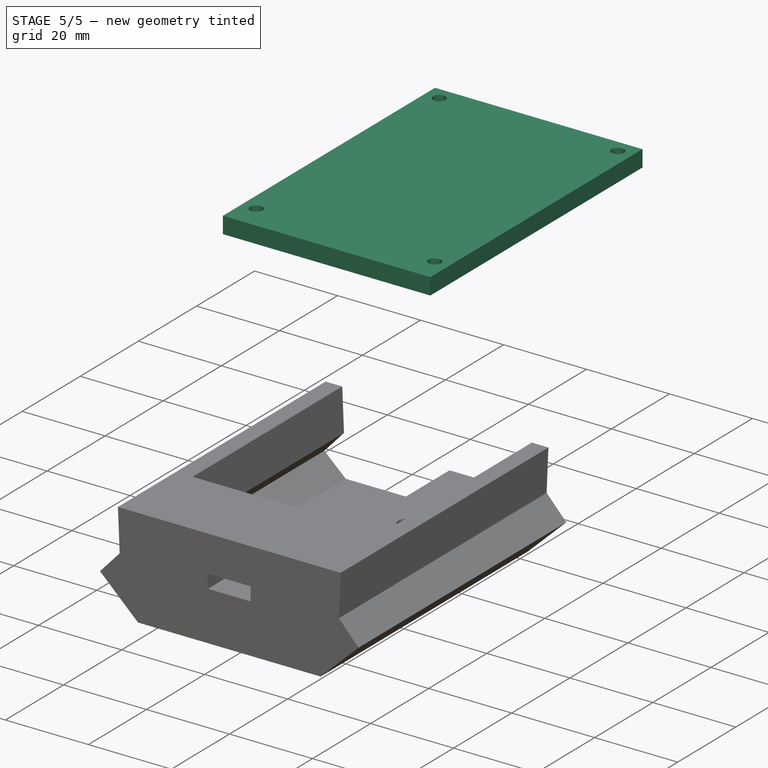
[diagram: stage 5 of 5 — iso view after this stage's code; geometry added in this stage tinted green]
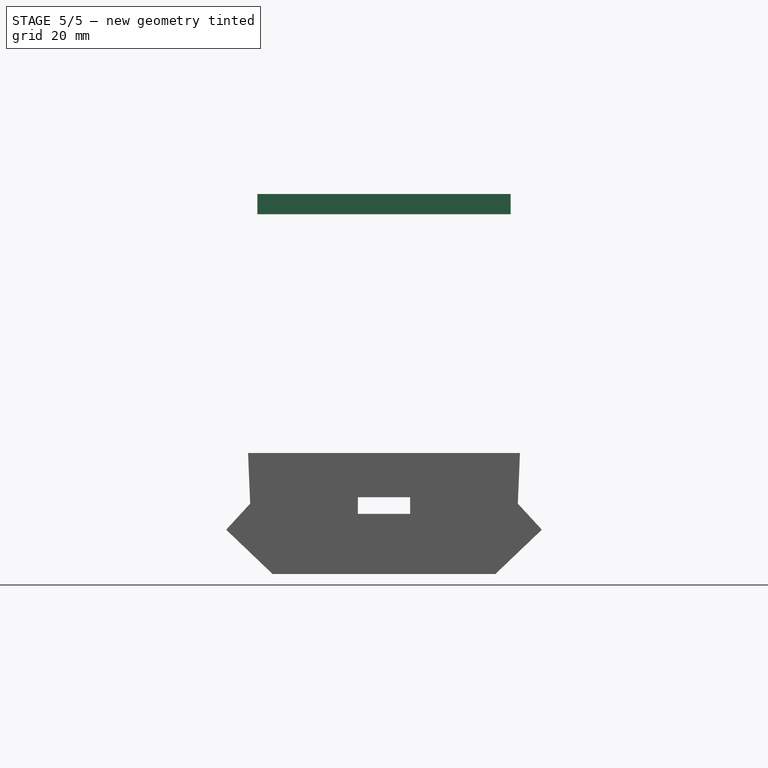
[diagram: stage 5 of 5 — front view after this stage's code; geometry added in this stage tinted green]
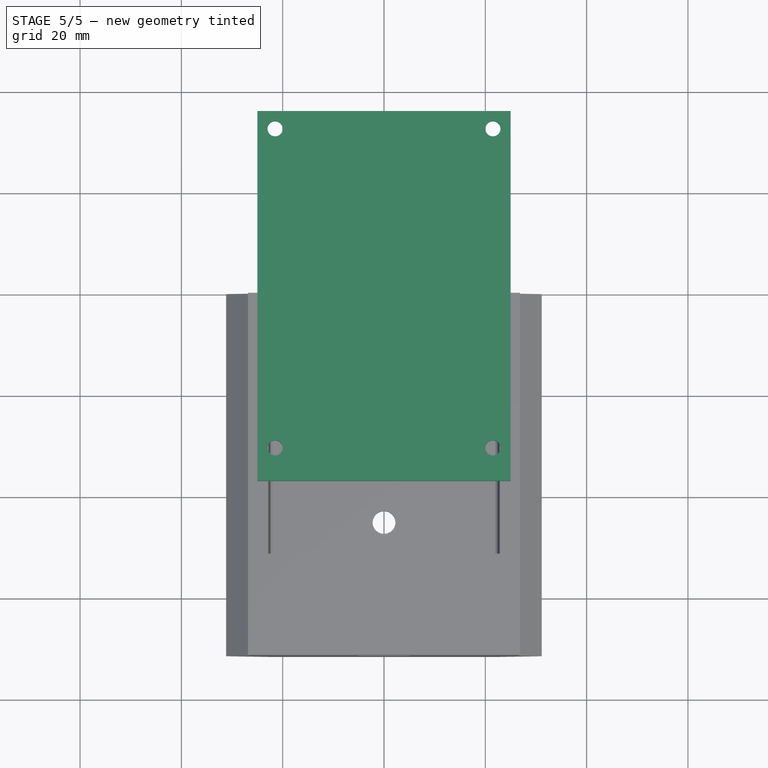
[diagram: stage 5 of 5 — top view after this stage's code; geometry added in this stage tinted green]
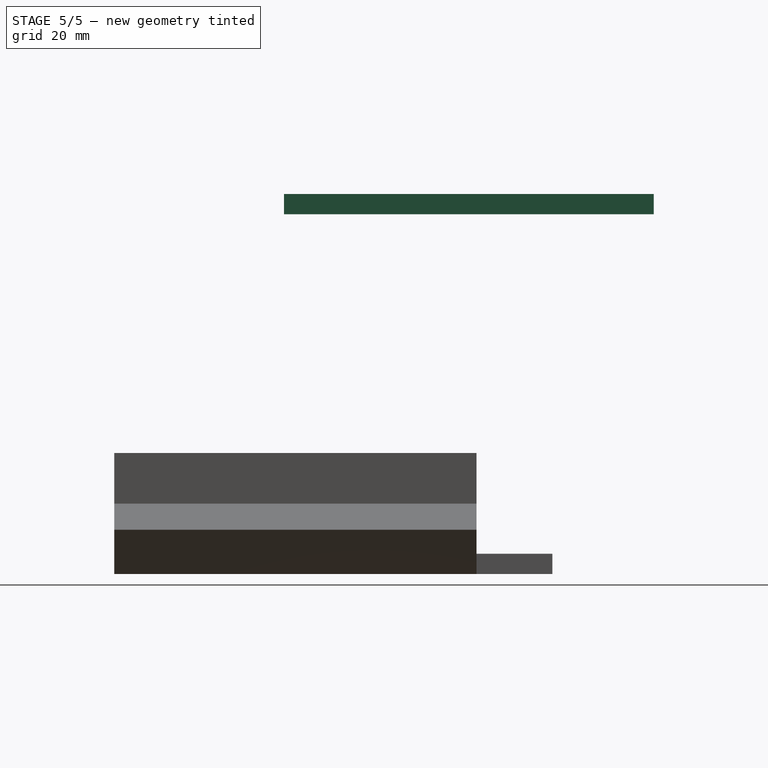
[diagram: stage 5 of 5 — right view after this stage's code; geometry added in this stage tinted green]
FEATURE [PartDesign::Body] Body  label="case"
  AllowCompound = false
  Group = -> [Sketch,Pad,Sketch001,Pad001,Sketch002,Pocket,Sketch003,Pocket001,Sketch004,SubtractivePipe,Sketch005,Pocket002,Sketch006,Pocket003,Sketch007,Pocket004]
  Origin = -> Origin
  Tip = -> Pocket004
FEATURE [Sketcher::SketchObject] Sketch008
  ArcFitTolerance = 1e-06
  AttachmentSupport = -> [XY_Plane001]
  FullyConstrained = true
  MakeInternals = false
  MapMode = 5
  expr: Constraints[10] = VarSet.cells_y * VarSet.cell_d / 2 + VarSet.thk + VarSet.groove_thk + VarSet.tol + VarSet.cable_groove
  expr: Constraints[7] = VarSet.thk * 2 + VarSet.groove_thk * 2 + VarSet.cells_x * VarSet.cell_d + VarSet.tol
  expr: Constraints[9] = VarSet.cells_y * VarSet.cell_d / 2 + VarSet.thk + VarSet.groove_thk + VarSet.tol
  sketch-geometry (4):
    g0: LineSegment StartX=-25 StartY=35 StartZ=0 EndX=-25 EndY=-38 EndZ=0
    g1: LineSegment StartX=-25 StartY=-38 StartZ=0 EndX=25 EndY=-38 EndZ=0
    g2: LineSegment StartX=25 StartY=-38 StartZ=0 EndX=25 EndY=35 EndZ=0
    g3: LineSegment StartX=25 StartY=35 StartZ=0 EndX=-25 EndY=35 EndZ=0
  constraints (11):
    c: Coincident(g0,g1)
    c: Coincident(g1,g2)
    c: Coincident(g2,g3)
    c: Coincident(g3,g0)
    c: Vertical(g0)
    c: Vertical(g2)
    c: Horizontal(g1)
    c: DistanceX(g3,g3) = 50
    c: Symmetric(g0,g2,g-2)
    c: Distance(g0,g-1) = 35
    c: DistanceY(g0,g-1) = 38
FEATURE [PartDesign::SubShapeBinder] Binder  label="top_face"
  BindCopyOnChange = 0
  BindMode = 0
  ClaimChildren = false
  Context = -> Body001 [Binder.]
  Fuse = false
  MakeFace = true
  OffsetFill = false
  OffsetIntersection = false
  OffsetJoinType = 0
  OffsetOpenResult = false
  PartialLoad = false
  Refine = true
  Relative = true
  Support = -> [Body[Pocket004.Face3,Pocket004.Face52],Sketch008]
  _Version = 2
FEATURE [PartDesign::Pad] Pad002
  Direction = (0,0,1)
  Length = 4
  Length2 = 10
  Profile = -> Sketch008
  ReferenceAxis = -> Sketch008 [N_Axis]
  Refine = true
  Reversed = true
  Suppressed = false
  Type = 0
  expr: Length = VarSet.thk
FEATURE [Sketcher::SketchObject] Sketch009
  ArcFitTolerance = 1e-06
  AttachmentSupport = -> [XY_Plane001]
  ExternalGeometry = -> [Binder]
  FullyConstrained = true
  MakeInternals = false
  MapMode = 5
  sketch-geometry (4):
    g0: Circle CenterX=-21.5 CenterY=-31.5 CenterZ=0 NormalX=0 NormalY=0 NormalZ=1 AngleXU=0 Radius=1.5
    g1: Circle CenterX=21.5 CenterY=-31.5 CenterZ=0 NormalX=0 NormalY=0 NormalZ=1 AngleXU=0 Radius=1.5
    g2: Circle CenterX=21.5 CenterY=31.5 CenterZ=0 NormalX=0 NormalY=0 NormalZ=1 AngleXU=0 Radius=1.5
    g3: Circle CenterX=-21.5 CenterY=31.5 CenterZ=0 NormalX=0 NormalY=0 NormalZ=1 AngleXU=0 Radius=1.5
  constraints (8):
    c: Coincident(g0,g-3)
    c: Equal(g0,g-3)
    c: Coincident(g1,g-4)
    c: Equal(g1,g-4)
    c: Coincident(g2,g-5)
    c: Equal(g2,g-5)
    c: Coincident(g3,g-6)
    c: Equal(g3,g-6)
FEATURE [PartDesign::Pocket] Pocket005
  BaseFeature = -> Pad002
  Direction = (0,0,-1)
  Length = 5
  Length2 = 5
  Profile = -> Sketch009
  ReferenceAxis = -> Sketch009 [N_Axis]
  Refine = true
  Suppressed = false
  Type = 1
FEATURE [PartDesign::SubShapeBinder] Binder002  label="path"
  BindCopyOnChange = 0
  BindMode = 0
  ClaimChildren = false
  Context = -> Body001 [Binder002.]
  Fuse = false
  MakeFace = true
  OffsetFill = false
  OffsetIntersection = false
  OffsetJoinType = 0
  OffsetOpenResult = false
  PartialLoad = false
  Refine = true
  Relative = true
  Support = -> [Body[Sketch003.]]
  _Version = 2
FEATURE [PartDesign::SubShapeBinder] Binder003  label="groove"
  BindCopyOnChange = 0
  BindMode = 0
  ClaimChildren = false
  Context = -> Body001 [Binder003.]
  Fuse = false
  MakeFace = true
  OffsetFill = false
  OffsetIntersection = false
  OffsetJoinType = 0
  OffsetOpenResult = false
  PartialLoad = false
  Refine = true
  Relative = true
  Support = -> [Body[Sketch004.]]
  _Version = 2
FEATURE [Sketcher::SketchObject] Sketch010
  ArcFitTolerance = 1e-06
  AttachmentSupport = -> [Binder002]
  ExternalGeometry = -> [Binder003]
  FullyConstrained = true
  MakeInternals = false
  MapMode = 45
  Placement = pos=(-19,-8e-16,22) rot=(0,0.707107,0.707107;3.14159rad)
  sketch-geometry (4):
    g0: LineSegment StartX=2 StartY=0 StartZ=0 EndX=2 EndY=-5 EndZ=0
    g1: LineSegment StartX=2 StartY=-5 StartZ=0 EndX=4 EndY=-5 EndZ=0
    g2: LineSegment StartX=4 StartY=-5 StartZ=0 EndX=4 EndY=0 EndZ=0
    g3: LineSegment StartX=4 StartY=0 StartZ=0 EndX=2 EndY=0 EndZ=0
  constraints (8):
    c: Coincident(g-4,g0)
    c: Coincident(g0,g-4)
    c: Coincident(g0,g1)
    c: Coincident(g1,g-5)
    c: Coincident(g1,g2)
    c: Coincident(g2,g-5)
    c: Coincident(g2,g3)
    c: Coincident(g3,g0)
FEATURE [PartDesign::AdditivePipe] AdditivePipe
  AuxilleryCurvelinear = true
  AuxillerySpineTangent = false
  BaseFeature = -> Pocket005
  Binormal = (0,0,0)
  Mode = 0
  Profile = -> Sketch010
  Refine = true
  Spine = -> Binder002 [Edge5,Edge6,Edge4,Edge3,Edge2,Edge1,Edge10,Edge9,Edge8,Edge7]
  SpineTangent = false
  Suppressed = false
  Transformation = 0
  Transition = 2
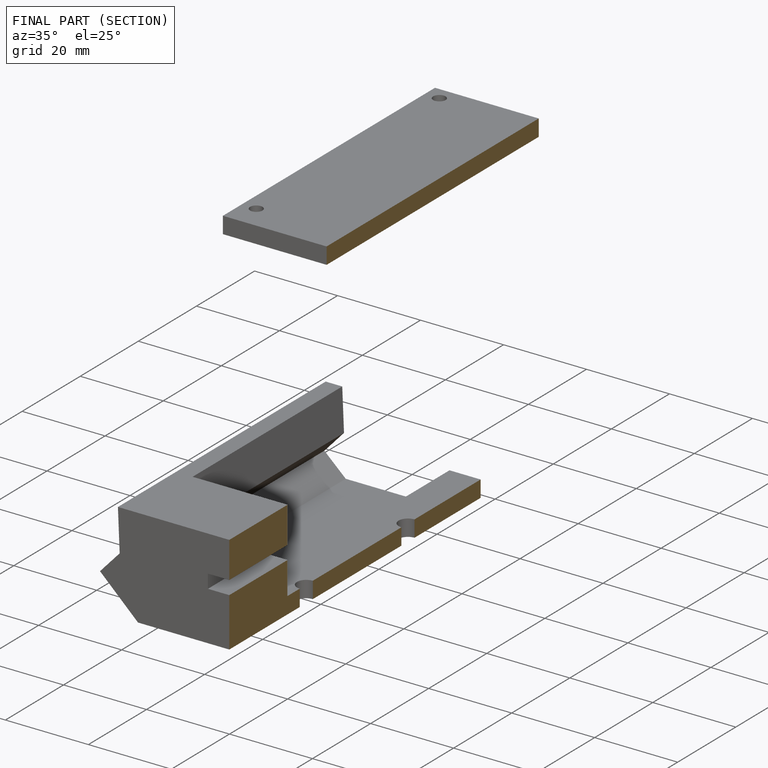
[diagram: finished part — half-section view (interior)]
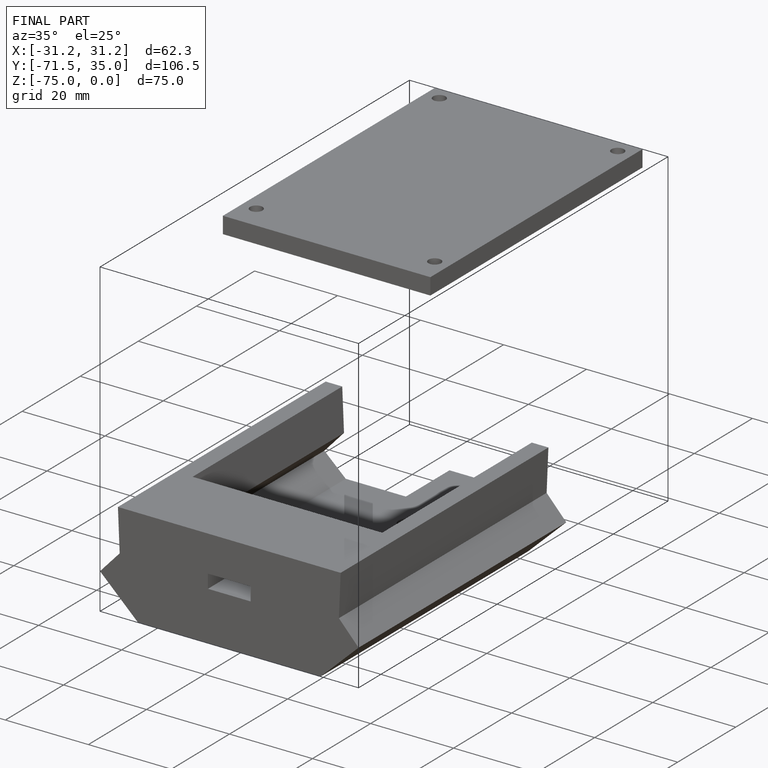
[diagram: finished part — iso view with bounding-box wireframe]
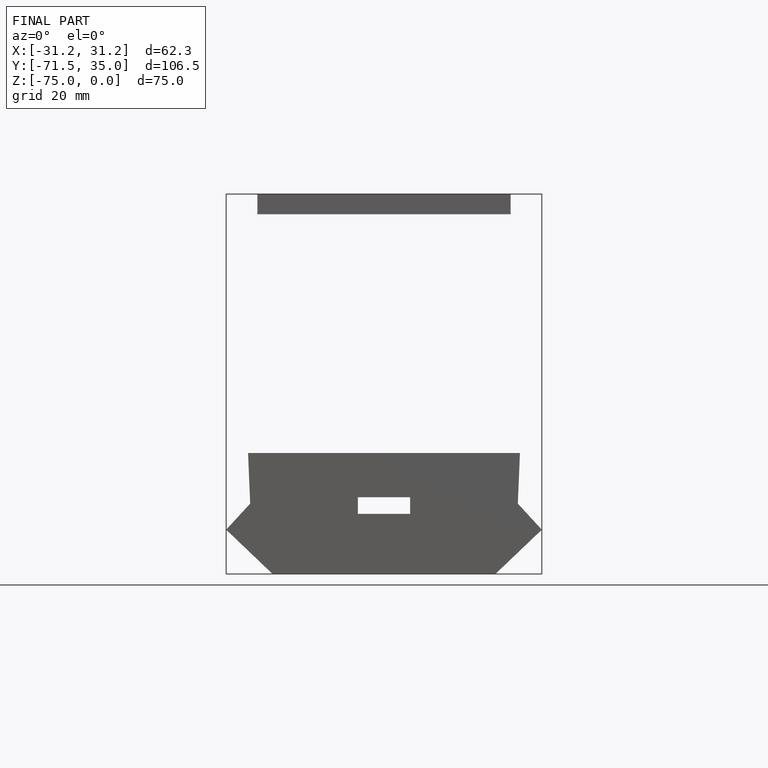
[diagram: finished part — front view with bounding-box wireframe]
